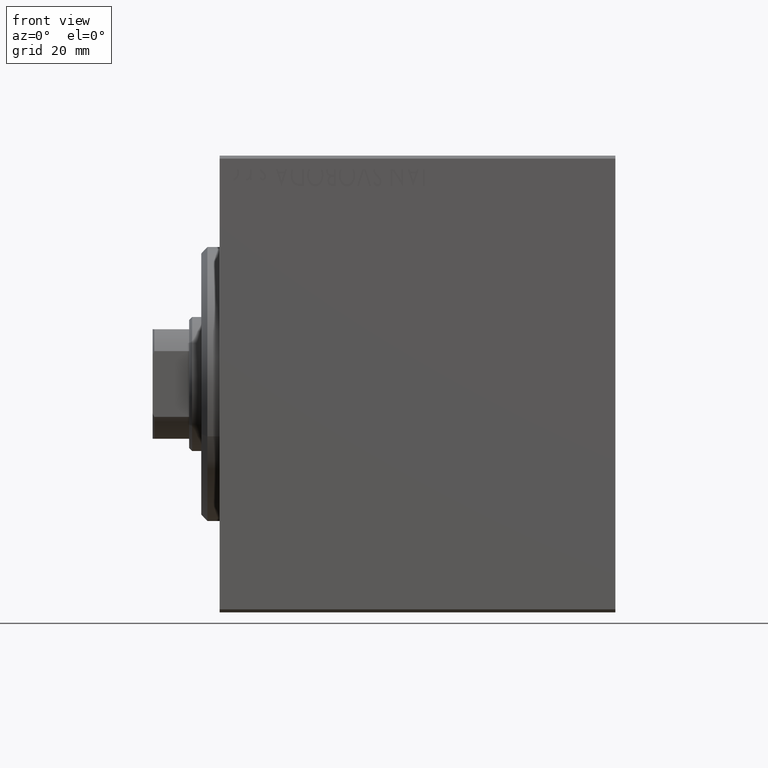
[diagram: clean part render]
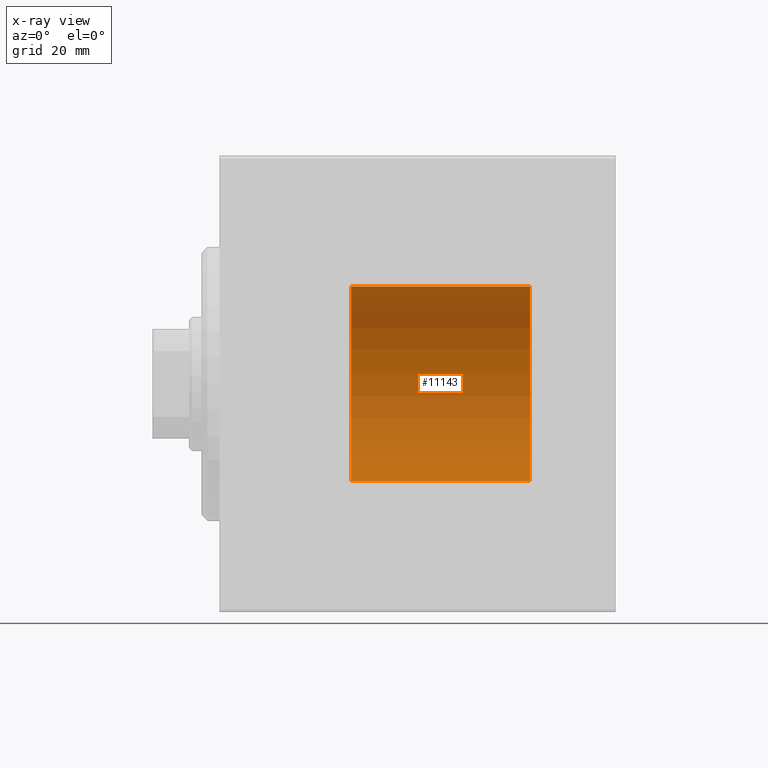
[diagram: x-ray — body ghosted, one internal face saturated and labeled with its STEP entity id]
A machine part, front view, then the same camera in x-ray: the body is ghosted and one INTERNAL B-rep face — a face not visible from any outside direction — is saturated and labeled: STEP entity #11143.
In plain terms, the highlighted cylindrical surface (partial cylindrical patch) has radius 16 mm, axis along (-1, -0, -0).
Its self-contained STEP definition (entity closure, byte-faithful):
#646 = AXIS2_PLACEMENT_3D ( 'NONE', #40426, #28008, #4423 ) ;
#2157 = EDGE_CURVE ( 'NONE', #38281, #7767, #31504, .T. ) ;
#3615 = CYLINDRICAL_SURFACE ( 'NONE', #646, 16.00000000000000000 ) ;
#4020 = AXIS2_PLACEMENT_3D ( 'NONE', #29181, #42604, #25866 ) ;
#4423 = DIRECTION ( 'NONE',  ( 0.000000000000000000, 0.000000000000000000, 1.000000000000000000 ) ) ;
#5749 = EDGE_CURVE ( 'NONE', #30085, #38281, #17432, .T. ) ;
#7767 = VERTEX_POINT ( 'NONE', #14938 ) ;
#8147 = DIRECTION ( 'NONE',  ( -1.000000000000000000, -0.000000000000000000, -0.000000000000000000 ) ) ;
#10393 = DIRECTION ( 'NONE',  ( -1.000000000000000000, 0.000000000000000000, 0.000000000000000000 ) ) ;
#11029 = CARTESIAN_POINT ( 'NONE',  ( 51.00000000000000000, 0.000000000000000000, 16.00000000000000000 ) ) ;
#11143 = ADVANCED_FACE ( 'NONE', ( #24716 ), #3615, .F. ) ;
#14938 = CARTESIAN_POINT ( 'NONE',  ( 21.60000000000000142, 1.959434878635765131E-15, -16.00000000000000000 ) ) ;
#17432 = CIRCLE ( 'NONE', #4020, 16.00000000000000000 ) ;
#17695 = VERTEX_POINT ( 'NONE', #41499 ) ;
#19445 = VECTOR ( 'NONE', #8147, 1000.000000000000000 ) ;
#23220 = EDGE_LOOP ( 'NONE', ( #32803, #43109, #25917, #39220 ) ) ;
#24714 = CARTESIAN_POINT ( 'NONE',  ( 51.00000000000000000, 1.959434878635765131E-15, -16.00000000000000000 ) ) ;
#24716 = FACE_OUTER_BOUND ( 'NONE', #23220, .T. ) ;
#25176 = CARTESIAN_POINT ( 'NONE',  ( 51.00000000000000000, 0.000000000000000000, 16.00000000000000000 ) ) ;
#25866 = DIRECTION ( 'NONE',  ( 0.000000000000000000, 0.000000000000000000, 1.000000000000000000 ) ) ;
#25917 = ORIENTED_EDGE ( 'NONE', *, *, #30317, .T. ) ;
#26713 = CARTESIAN_POINT ( 'NONE',  ( 21.60000000000000142, 0.000000000000000000, 0.000000000000000000 ) ) ;
#26938 = DIRECTION ( 'NONE',  ( 0.000000000000000000, 0.000000000000000000, 1.000000000000000000 ) ) ;
#28008 = DIRECTION ( 'NONE',  ( -1.000000000000000000, -0.000000000000000000, -0.000000000000000000 ) ) ;
#28211 = CARTESIAN_POINT ( 'NONE',  ( 51.00000000000000000, 1.959434878635765131E-15, -16.00000000000000000 ) ) ;
#29181 = CARTESIAN_POINT ( 'NONE',  ( 51.00000000000000000, 0.000000000000000000, 0.000000000000000000 ) ) ;
#30085 = VERTEX_POINT ( 'NONE', #25176 ) ;
#30178 = EDGE_CURVE ( 'NONE', #17695, #7767, #32268, .T. ) ;
#30317 = EDGE_CURVE ( 'NONE', #30085, #17695, #35042, .T. ) ;
#31504 = LINE ( 'NONE', #28211, #19445 ) ;
#32268 = CIRCLE ( 'NONE', #42802, 16.00000000000000000 ) ;
#32803 = ORIENTED_EDGE ( 'NONE', *, *, #2157, .F. ) ;
#34180 = DIRECTION ( 'NONE',  ( -1.000000000000000000, -0.000000000000000000, -0.000000000000000000 ) ) ;
#35042 = LINE ( 'NONE', #11029, #40008 ) ;
#38281 = VERTEX_POINT ( 'NONE', #24714 ) ;
#39220 = ORIENTED_EDGE ( 'NONE', *, *, #30178, .T. ) ;
#40008 = VECTOR ( 'NONE', #34180, 1000.000000000000000 ) ;
#40426 = CARTESIAN_POINT ( 'NONE',  ( 51.00000000000000000, 0.000000000000000000, 0.000000000000000000 ) ) ;
#41499 = CARTESIAN_POINT ( 'NONE',  ( 21.60000000000000142, 0.000000000000000000, 16.00000000000000000 ) ) ;
#42604 = DIRECTION ( 'NONE',  ( -1.000000000000000000, 0.000000000000000000, 0.000000000000000000 ) ) ;
#42802 = AXIS2_PLACEMENT_3D ( 'NONE', #26713, #10393, #26938 ) ;
#43109 = ORIENTED_EDGE ( 'NONE', *, *, #5749, .F. ) ;